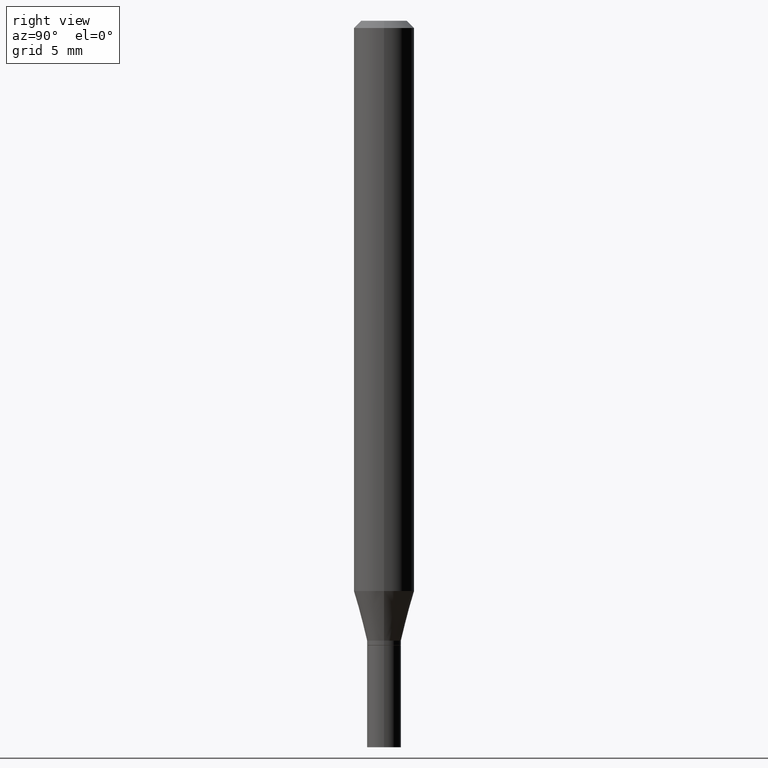
[diagram: clean part render]
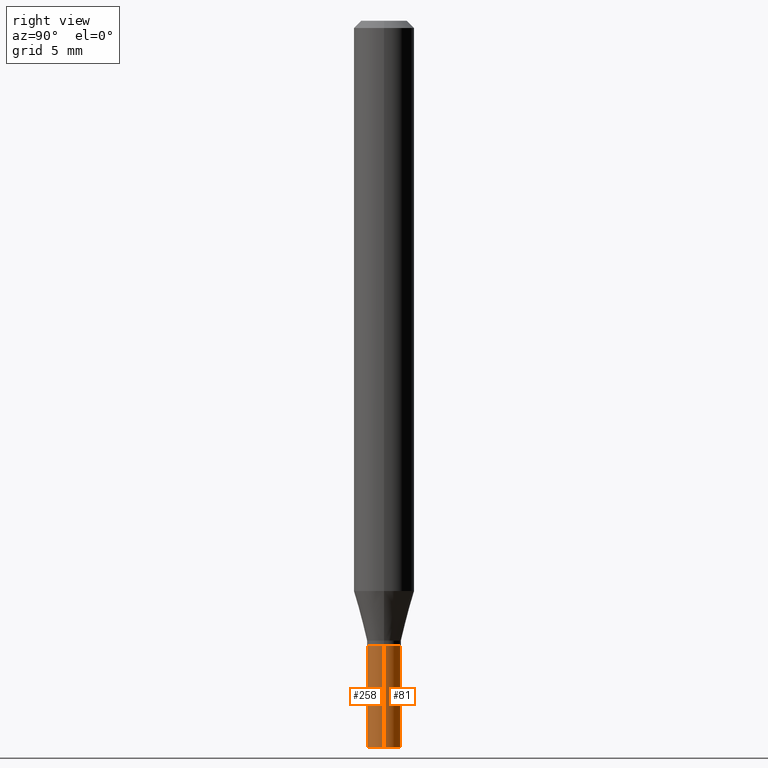
[diagram: same view with one multi-face feature highlighted, each face labeled with its STEP entity id]
A machine part, right view. The highlighted faces form ONE feature: a constant-radius fillet chain: 2 tangent blend faces with common blend radius 0.889 mm. The faces share edges in the B-rep.
Their STEP definitions:
[1] entity #258 (Cylinder):
#4 = DIRECTION ( 'NONE',  ( -2.445468806185136877E-29, 3.491481338843145188E-15, 1.000000000000000000 ) ) ;
#19 = DIRECTION ( 'NONE',  ( -2.445468806185136597E-29, 3.491481338843145583E-15, 1.000000000000000000 ) ) ;
#30 = VERTEX_POINT ( 'NONE', #199 ) ;
#31 = DIRECTION ( 'NONE',  ( 1.000000000000000000, -6.982962677686276966E-15, 0.000000000000000000 ) ) ;
#50 = CARTESIAN_POINT ( 'NONE',  ( 3.668203209277704895E-29, -5.237222008264718177E-15, -1.500000000000000222 ) ) ;
#51 = CARTESIAN_POINT ( 'NONE',  ( -0.03500000000000000333, -4.621926510170152942E-15, -1.500000000000000222 ) ) ;
#53 = CIRCLE ( 'NONE', #82, 0.03500000000000000333 ) ;
#74 = CARTESIAN_POINT ( 'NONE',  ( 0.000000000000000000, 0.000000000000000000, 0.000000000000000000 ) ) ;
#82 = AXIS2_PLACEMENT_3D ( 'NONE', #50, #19, #31 ) ;
#102 = AXIS2_PLACEMENT_3D ( 'NONE', #385, #338, #175 ) ;
#114 = EDGE_CURVE ( 'NONE', #389, #30, #53, .T. ) ;
#134 = EDGE_CURVE ( 'NONE', #389, #429, #171, .T. ) ;
#152 = EDGE_LOOP ( 'NONE', ( #413, #350, #343, #361 ) ) ;
#153 = DIRECTION ( 'NONE',  ( -2.445468806185136597E-29, 3.491481338843145583E-15, 1.000000000000000000 ) ) ;
#171 = LINE ( 'NONE', #316, #381 ) ;
#175 = DIRECTION ( 'NONE',  ( 1.000000000000000000, -6.982962677686276966E-15, 0.000000000000000000 ) ) ;
#199 = CARTESIAN_POINT ( 'NONE',  ( 0.03500000000000000333, -5.481625701983738143E-15, -1.500000000000000222 ) ) ;
#224 = DIRECTION ( 'NONE',  ( 1.000000000000000000, -6.982962677686265922E-15, 4.876176775795936353E-29 ) ) ;
#245 = EDGE_CURVE ( 'NONE', #30, #375, #402, .T. ) ;
#257 = CYLINDRICAL_SURFACE ( 'NONE', #267, 0.03500000000000000333 ) ;
#258 = ADVANCED_FACE ( 'NONE', ( #259 ), #257, .T. ) ;
#259 = FACE_OUTER_BOUND ( 'NONE', #152, .T. ) ;
#267 = AXIS2_PLACEMENT_3D ( 'NONE', #74, #153, #224 ) ;
#316 = CARTESIAN_POINT ( 'NONE',  ( -0.03500000000000000333, 2.486899575160350887E-16, -1.721627281589217108E-30 ) ) ;
#338 = DIRECTION ( 'NONE',  ( -2.445468806185136597E-29, 3.491481338843145583E-15, 1.000000000000000000 ) ) ;
#343 = ORIENTED_EDGE ( 'NONE', *, *, #245, .T. ) ;
#349 = CARTESIAN_POINT ( 'NONE',  ( -0.03500000000000000333, -4.621926510170152942E-15, -1.290000000000000258 ) ) ;
#350 = ORIENTED_EDGE ( 'NONE', *, *, #114, .T. ) ;
#361 = ORIENTED_EDGE ( 'NONE', *, *, #390, .F. ) ;
#375 = VERTEX_POINT ( 'NONE', #415 ) ;
#377 = VECTOR ( 'NONE', #4, 39.37007874015748143 ) ;
#381 = VECTOR ( 'NONE', #444, 39.37007874015748143 ) ;
#385 = CARTESIAN_POINT ( 'NONE',  ( 3.154654759978826367E-29, -4.504010927107658279E-15, -1.290000000000000258 ) ) ;
#389 = VERTEX_POINT ( 'NONE', #51 ) ;
#390 = EDGE_CURVE ( 'NONE', #429, #375, #431, .T. ) ;
#402 = LINE ( 'NONE', #461, #377 ) ;
#413 = ORIENTED_EDGE ( 'NONE', *, *, #134, .F. ) ;
#415 = CARTESIAN_POINT ( 'NONE',  ( 0.03500000000000000333, -4.748414620826678245E-15, -1.290000000000000258 ) ) ;
#429 = VERTEX_POINT ( 'NONE', #349 ) ;
#431 = CIRCLE ( 'NONE', #102, 0.03500000000000000333 ) ;
#444 = DIRECTION ( 'NONE',  ( -2.445468806185136877E-29, 3.491481338843145188E-15, 1.000000000000000000 ) ) ;
#461 = CARTESIAN_POINT ( 'NONE',  ( 0.03500000000000000333, -2.444036937190193250E-16, 1.706661871528577808E-30 ) ) ;
[2] entity #81 (Cylinder):
#4 = DIRECTION ( 'NONE',  ( -2.445468806185136877E-29, 3.491481338843145188E-15, 1.000000000000000000 ) ) ;
#30 = VERTEX_POINT ( 'NONE', #199 ) ;
#43 = EDGE_CURVE ( 'NONE', #375, #429, #198, .T. ) ;
#51 = CARTESIAN_POINT ( 'NONE',  ( -0.03500000000000000333, -4.621926510170152942E-15, -1.500000000000000222 ) ) ;
#56 = FACE_OUTER_BOUND ( 'NONE', #173, .T. ) ;
#59 = CYLINDRICAL_SURFACE ( 'NONE', #464, 0.03500000000000000333 ) ;
#64 = AXIS2_PLACEMENT_3D ( 'NONE', #236, #204, #442 ) ;
#81 = ADVANCED_FACE ( 'NONE', ( #56 ), #59, .T. ) ;
#103 = ORIENTED_EDGE ( 'NONE', *, *, #134, .T. ) ;
#132 = DIRECTION ( 'NONE',  ( 1.000000000000000000, -6.982962677686276966E-15, 0.000000000000000000 ) ) ;
#134 = EDGE_CURVE ( 'NONE', #389, #429, #171, .T. ) ;
#171 = LINE ( 'NONE', #316, #381 ) ;
#173 = EDGE_LOOP ( 'NONE', ( #260, #103, #262, #238 ) ) ;
#198 = CIRCLE ( 'NONE', #211, 0.03500000000000000333 ) ;
#199 = CARTESIAN_POINT ( 'NONE',  ( 0.03500000000000000333, -5.481625701983738143E-15, -1.500000000000000222 ) ) ;
#203 = DIRECTION ( 'NONE',  ( -2.445468806185136597E-29, 3.491481338843145583E-15, 1.000000000000000000 ) ) ;
#204 = DIRECTION ( 'NONE',  ( -2.445468806185136597E-29, 3.491481338843145583E-15, 1.000000000000000000 ) ) ;
#206 = CARTESIAN_POINT ( 'NONE',  ( 0.000000000000000000, 0.000000000000000000, 0.000000000000000000 ) ) ;
#211 = AXIS2_PLACEMENT_3D ( 'NONE', #354, #272, #132 ) ;
#223 = CIRCLE ( 'NONE', #64, 0.03500000000000000333 ) ;
#236 = CARTESIAN_POINT ( 'NONE',  ( 3.668203209277704895E-29, -5.237222008264718177E-15, -1.500000000000000222 ) ) ;
#238 = ORIENTED_EDGE ( 'NONE', *, *, #245, .F. ) ;
#245 = EDGE_CURVE ( 'NONE', #30, #375, #402, .T. ) ;
#260 = ORIENTED_EDGE ( 'NONE', *, *, #358, .T. ) ;
#262 = ORIENTED_EDGE ( 'NONE', *, *, #43, .F. ) ;
#272 = DIRECTION ( 'NONE',  ( -2.445468806185136597E-29, 3.491481338843145583E-15, 1.000000000000000000 ) ) ;
#313 = DIRECTION ( 'NONE',  ( 1.000000000000000000, -6.982962677686265922E-15, 4.876176775795936353E-29 ) ) ;
#316 = CARTESIAN_POINT ( 'NONE',  ( -0.03500000000000000333, 2.486899575160350887E-16, -1.721627281589217108E-30 ) ) ;
#349 = CARTESIAN_POINT ( 'NONE',  ( -0.03500000000000000333, -4.621926510170152942E-15, -1.290000000000000258 ) ) ;
#354 = CARTESIAN_POINT ( 'NONE',  ( 3.154654759978826367E-29, -4.504010927107658279E-15, -1.290000000000000258 ) ) ;
#358 = EDGE_CURVE ( 'NONE', #30, #389, #223, .T. ) ;
#375 = VERTEX_POINT ( 'NONE', #415 ) ;
#377 = VECTOR ( 'NONE', #4, 39.37007874015748143 ) ;
#381 = VECTOR ( 'NONE', #444, 39.37007874015748143 ) ;
#389 = VERTEX_POINT ( 'NONE', #51 ) ;
#402 = LINE ( 'NONE', #461, #377 ) ;
#415 = CARTESIAN_POINT ( 'NONE',  ( 0.03500000000000000333, -4.748414620826678245E-15, -1.290000000000000258 ) ) ;
#429 = VERTEX_POINT ( 'NONE', #349 ) ;
#442 = DIRECTION ( 'NONE',  ( 1.000000000000000000, -6.982962677686276966E-15, 0.000000000000000000 ) ) ;
#444 = DIRECTION ( 'NONE',  ( -2.445468806185136877E-29, 3.491481338843145188E-15, 1.000000000000000000 ) ) ;
#461 = CARTESIAN_POINT ( 'NONE',  ( 0.03500000000000000333, -2.444036937190193250E-16, 1.706661871528577808E-30 ) ) ;
#464 = AXIS2_PLACEMENT_3D ( 'NONE', #206, #203, #313 ) ;